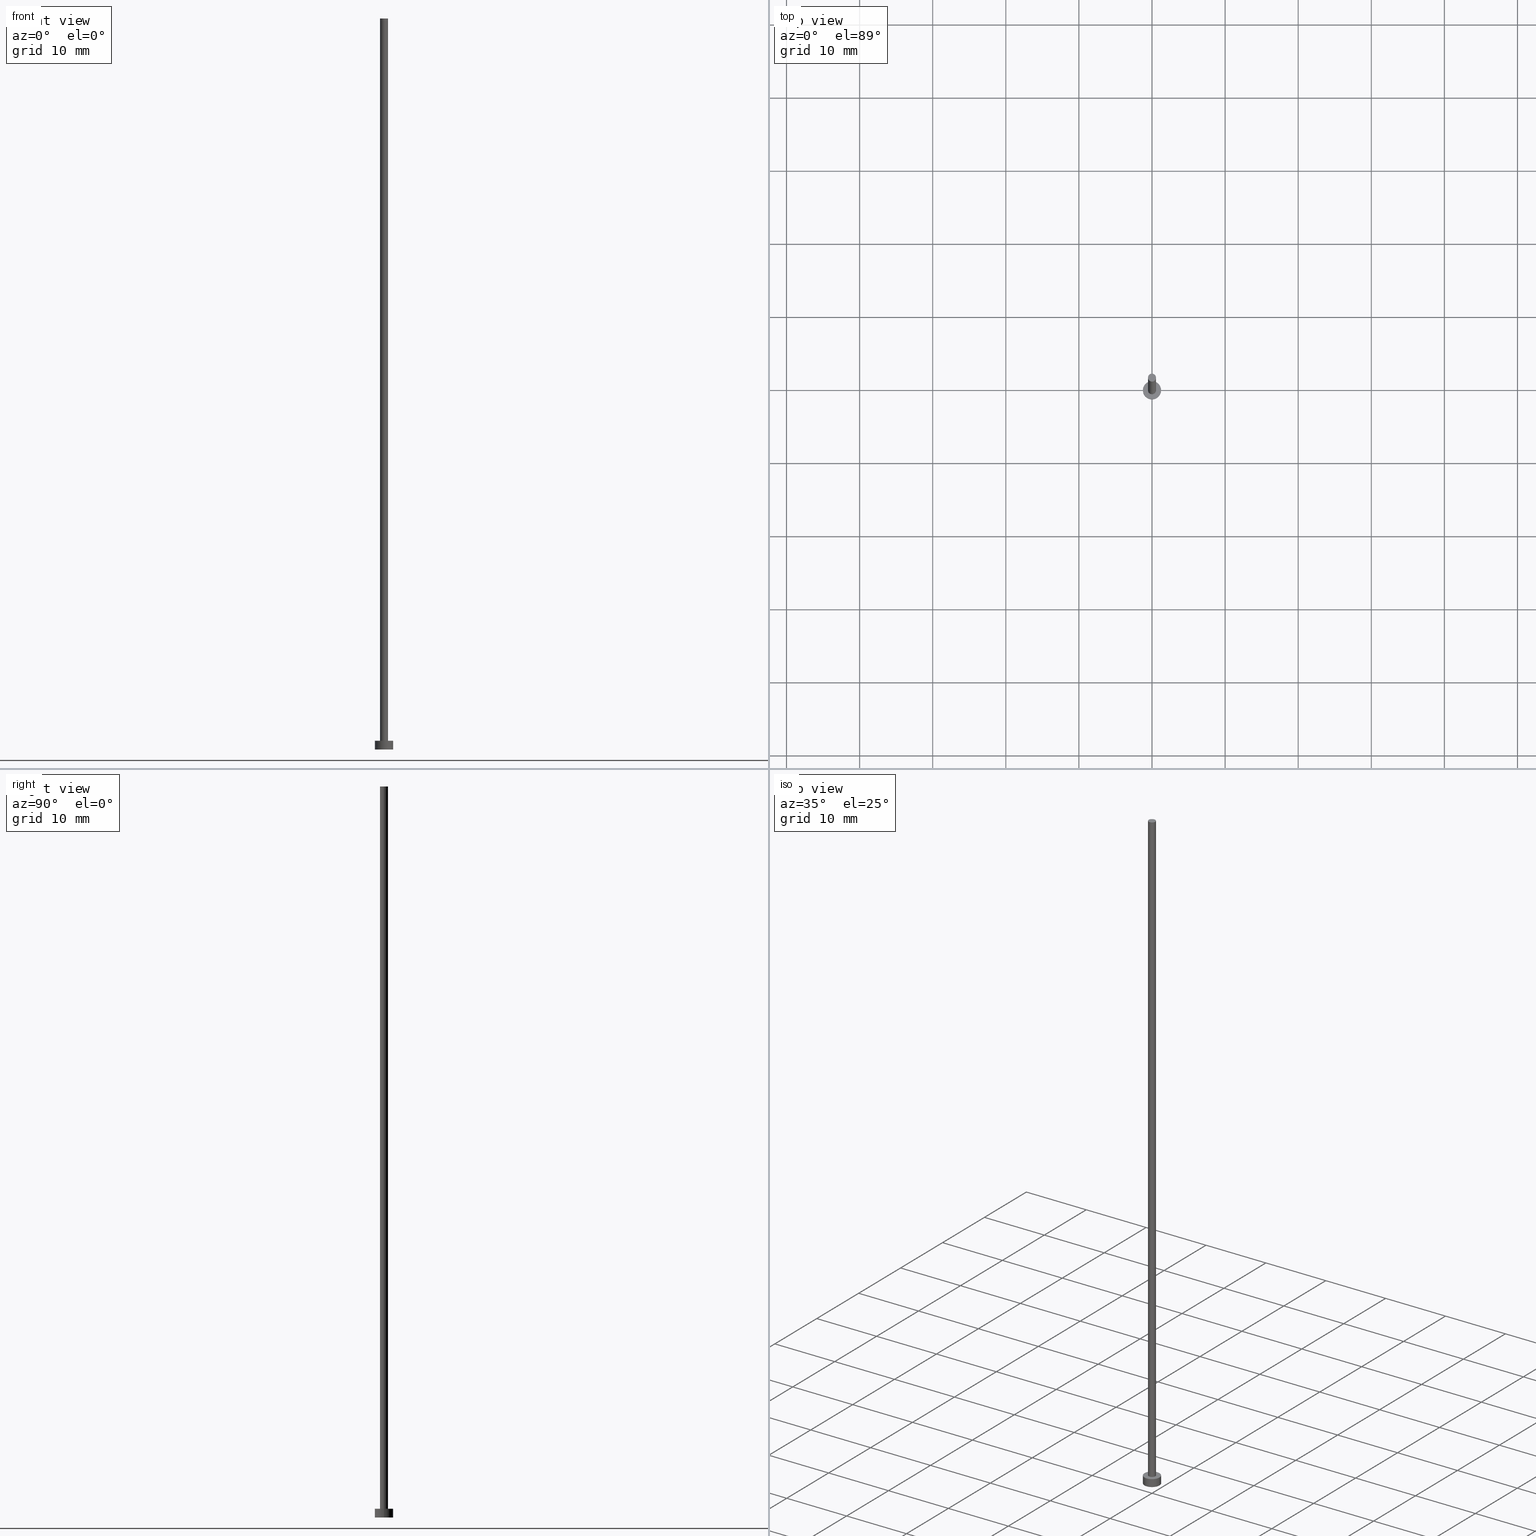
[diagram: canonical four-view strip — front | top / right | iso, engineering-drawing reading convention]
A machine part, canonical four-view strip (front | top / right | iso — engineering-drawing reading convention). The complete STEP part file that produces these views, byte-faithful:
ISO-10303-21;
HEADER;
FILE_DESCRIPTION (( 'STEP AP203' ),
    '1' );
FILE_NAME ('9f99.STEP',
    '2023-02-13T15:27:46',
    ( '' ),
    ( '' ),
    'SwSTEP 2.0',
    'SolidWorks 2019',
    '' );
FILE_SCHEMA (( 'CONFIG_CONTROL_DESIGN' ));
ENDSEC;

DATA;
#1 = LINE ( 'NONE', #39, #212 ) ;
#2 = EDGE_CURVE ( 'NONE', #182, #102, #30, .T. ) ;
#3 = PERSON_AND_ORGANIZATION ( #229, #213 ) ;
#4 = CARTESIAN_POINT ( 'NONE',  ( 0.5500000000000000444, 6.735557395310442516E-17, 100.0000000000000000 ) ) ;
#5 = APPROVAL_ROLE ( '' ) ;
#6 = CYLINDRICAL_SURFACE ( 'NONE', #84, 1.250000000000000000 ) ;
#7 = SECURITY_CLASSIFICATION_LEVEL ( 'unclassified' ) ;
#8 = CC_DESIGN_PERSON_AND_ORGANIZATION_ASSIGNMENT ( #63, #216, ( #114 ) ) ;
#9 = DIRECTION ( 'NONE',  ( 1.000000000000000000, 0.000000000000000000, 0.000000000000000000 ) ) ;
#10 = ORIENTED_EDGE ( 'NONE', *, *, #164, .T. ) ;
#11 = CC_DESIGN_PERSON_AND_ORGANIZATION_ASSIGNMENT ( #40, #112, ( #191 ) ) ;
#12 = AXIS2_PLACEMENT_3D ( 'NONE', #217, #138, #13 ) ;
#13 = DIRECTION ( 'NONE',  ( 1.000000000000000000, 0.000000000000000000, 0.000000000000000000 ) ) ;
#14 = VERTEX_POINT ( 'NONE', #153 ) ;
#15 = VERTEX_POINT ( 'NONE', #206 ) ;
#16 = DIRECTION ( 'NONE',  ( 0.000000000000000000, 0.000000000000000000, 1.000000000000000000 ) ) ;
#17 = CARTESIAN_POINT ( 'NONE',  ( 0.000000000000000000, 0.000000000000000000, 1.199999999999999956 ) ) ;
#18 = AXIS2_PLACEMENT_3D ( 'NONE', #189, #16, #92 ) ;
#19 = MECHANICAL_CONTEXT ( 'NONE', #177, 'mechanical' ) ;
#20 = DIRECTION ( 'NONE',  ( -0.000000000000000000, -0.000000000000000000, -1.000000000000000000 ) ) ;
#21 = LINE ( 'NONE', #253, #233 ) ;
#22 = DIRECTION ( 'NONE',  ( 0.000000000000000000, 0.000000000000000000, 1.000000000000000000 ) ) ;
#23 = DATE_TIME_ROLE ( 'classification_date' ) ;
#24 = CC_DESIGN_SECURITY_CLASSIFICATION ( #114, ( #191 ) ) ;
#25 = DIRECTION ( 'NONE',  ( -0.000000000000000000, -0.000000000000000000, -1.000000000000000000 ) ) ;
#26 =( LENGTH_UNIT ( ) NAMED_UNIT ( * ) SI_UNIT ( .MILLI., .METRE. ) );
#27 = AXIS2_PLACEMENT_3D ( 'NONE', #109, #187, #156 ) ;
#28 = CYLINDRICAL_SURFACE ( 'NONE', #165, 0.5500000000000000444 ) ;
#29 = ORIENTED_EDGE ( 'NONE', *, *, #243, .T. ) ;
#30 = LINE ( 'NONE', #53, #146 ) ;
#31 = EDGE_CURVE ( 'NONE', #124, #107, #130, .T. ) ;
#32 = CYLINDRICAL_SURFACE ( 'NONE', #151, 0.5500000000000000444 ) ;
#33 = LOCAL_TIME ( 16, 27, 46.00000000000000000, #62 ) ;
#34 = MANIFOLD_SOLID_BREP ( 'P�idat vysunut�m3', #201 ) ;
#35 = DATE_TIME_ROLE ( 'creation_date' ) ;
#36 = EDGE_CURVE ( 'NONE', #186, #102, #134, .T. ) ;
#37 = DIRECTION ( 'NONE',  ( 0.000000000000000000, 0.000000000000000000, 1.000000000000000000 ) ) ;
#38 = CIRCLE ( 'NONE', #238, 1.250000000000000000 ) ;
#39 = CARTESIAN_POINT ( 'NONE',  ( 1.250000000000000000, 1.530808498934191571E-16, 1.199999999999999956 ) ) ;
#40 = PERSON_AND_ORGANIZATION ( #229, #213 ) ;
#41 = PERSON_AND_ORGANIZATION ( #229, #213 ) ;
#42 = AXIS2_PLACEMENT_3D ( 'NONE', #196, #25, #214 ) ;
#43 = ORIENTED_EDGE ( 'NONE', *, *, #2, .F. ) ;
#44 = CIRCLE ( 'NONE', #68, 0.5500000000000000444 ) ;
#45 = EDGE_LOOP ( 'NONE', ( #148, #223 ) ) ;
#46 = COORDINATED_UNIVERSAL_TIME_OFFSET ( 1, 0, .AHEAD. ) ;
#47 = DIRECTION ( 'NONE',  ( -0.000000000000000000, -0.000000000000000000, -1.000000000000000000 ) ) ;
#48 = ORIENTED_EDGE ( 'NONE', *, *, #192, .F. ) ;
#49 = EDGE_LOOP ( 'NONE', ( #181, #210, #67, #204 ) ) ;
#50 = DESIGN_CONTEXT ( 'detailed design', #142, 'design' ) ;
#51 = COORDINATED_UNIVERSAL_TIME_OFFSET ( 1, 0, .AHEAD. ) ;
#52 = DIRECTION ( 'NONE',  ( -1.000000000000000000, 0.000000000000000000, 0.000000000000000000 ) ) ;
#53 = CARTESIAN_POINT ( 'NONE',  ( 0.5500000000000000444, 6.735557395310442516E-17, 100.0000000000000000 ) ) ;
#54 = ORIENTED_EDGE ( 'NONE', *, *, #126, .F. ) ;
#55 = CARTESIAN_POINT ( 'NONE',  ( -1.250000000000000000, 0.000000000000000000, 1.199999999999999956 ) ) ;
#56 = FACE_OUTER_BOUND ( 'NONE', #227, .T. ) ;
#57 = AXIS2_PLACEMENT_3D ( 'NONE', #215, #22, #115 ) ;
#58 = FACE_OUTER_BOUND ( 'NONE', #49, .T. ) ;
#59 = APPLICATION_PROTOCOL_DEFINITION ( 'international standard', 'config_control_design', 1994, #142 ) ;
#60 = CC_DESIGN_PERSON_AND_ORGANIZATION_ASSIGNMENT ( #198, #81, ( #191 ) ) ;
#61 = ORIENTED_EDGE ( 'NONE', *, *, #2, .T. ) ;
#62 = COORDINATED_UNIVERSAL_TIME_OFFSET ( 1, 0, .AHEAD. ) ;
#63 = PERSON_AND_ORGANIZATION ( #229, #213 ) ;
#64 = APPROVAL ( #180, 'NEUR�EN�' ) ;
#65 = CARTESIAN_POINT ( 'NONE',  ( 0.000000000000000000, 0.000000000000000000, 100.0000000000000000 ) ) ;
#66 = ORIENTED_EDGE ( 'NONE', *, *, #243, .F. ) ;
#67 = ORIENTED_EDGE ( 'NONE', *, *, #126, .T. ) ;
#68 = AXIS2_PLACEMENT_3D ( 'NONE', #143, #202, #121 ) ;
#69 = CARTESIAN_POINT ( 'NONE',  ( 0.000000000000000000, 0.000000000000000000, 0.000000000000000000 ) ) ;
#70 = PERSON_AND_ORGANIZATION_ROLE ( 'creator' ) ;
#71 = ADVANCED_FACE ( 'NONE', ( #190, #211 ), #168, .T. ) ;
#72 = DIRECTION ( 'NONE',  ( 1.000000000000000000, 0.000000000000000000, 0.000000000000000000 ) ) ;
#73 = CC_DESIGN_APPROVAL ( #199, ( #139 ) ) ;
#74 = PLANE ( 'NONE',  #57 ) ;
#75 = DIRECTION ( 'NONE',  ( 1.000000000000000000, 0.000000000000000000, 0.000000000000000000 ) ) ;
#76 = LOCAL_TIME ( 16, 27, 46.00000000000000000, #51 ) ;
#77 = APPROVAL_STATUS ( 'not_yet_approved' ) ;
#78 = CARTESIAN_POINT ( 'NONE',  ( -0.5500000000000000444, 0.000000000000000000, 1.199999999999999956 ) ) ;
#79 = EDGE_CURVE ( 'NONE', #107, #15, #235, .T. ) ;
#80 = CARTESIAN_POINT ( 'NONE',  ( 0.000000000000000000, 0.000000000000000000, 1.199999999999999956 ) ) ;
#81 = PERSON_AND_ORGANIZATION_ROLE ( 'creator' ) ;
#82 = APPLICATION_PROTOCOL_DEFINITION ( 'international standard', 'config_control_design', 1994, #177 ) ;
#83 = ORIENTED_EDGE ( 'NONE', *, *, #79, .T. ) ;
#84 = AXIS2_PLACEMENT_3D ( 'NONE', #80, #244, #161 ) ;
#85 = DIRECTION ( 'NONE',  ( 1.000000000000000000, 0.000000000000000000, 0.000000000000000000 ) ) ;
#86 = ORIENTED_EDGE ( 'NONE', *, *, #135, .F. ) ;
#87 = ADVANCED_BREP_SHAPE_REPRESENTATION ( '9f99', ( #34, #172 ), #99 ) ;
#88 = CARTESIAN_POINT ( 'NONE',  ( 0.000000000000000000, 0.000000000000000000, 100.0000000000000000 ) ) ;
#89 = DIRECTION ( 'NONE',  ( -0.000000000000000000, -0.000000000000000000, -1.000000000000000000 ) ) ;
#90 = AXIS2_PLACEMENT_3D ( 'NONE', #17, #37, #72 ) ;
#91 = FACE_OUTER_BOUND ( 'NONE', #162, .T. ) ;
#92 = DIRECTION ( 'NONE',  ( 1.000000000000000000, 0.000000000000000000, 0.000000000000000000 ) ) ;
#93 = CIRCLE ( 'NONE', #179, 1.250000000000000000 ) ;
#94 = CARTESIAN_POINT ( 'NONE',  ( -1.250000000000000000, 0.000000000000000000, 1.199999999999999956 ) ) ;
#95 = CARTESIAN_POINT ( 'NONE',  ( 0.000000000000000000, 0.000000000000000000, 1.199999999999999956 ) ) ;
#96 = LOCAL_TIME ( 16, 27, 46.00000000000000000, #46 ) ;
#97 = DATE_AND_TIME ( #237, #96 ) ;
#98 = FACE_OUTER_BOUND ( 'NONE', #184, .T. ) ;
#99 =( GEOMETRIC_REPRESENTATION_CONTEXT ( 3 ) GLOBAL_UNCERTAINTY_ASSIGNED_CONTEXT ( ( #105 ) ) GLOBAL_UNIT_ASSIGNED_CONTEXT ( ( #26, #221, #106 ) ) REPRESENTATION_CONTEXT ( 'NONE', 'WORKASPACE' ) );
#100 = DIRECTION ( 'NONE',  ( 0.000000000000000000, 0.000000000000000000, 1.000000000000000000 ) ) ;
#101 = VECTOR ( 'NONE', #20, 1000.000000000000000 ) ;
#102 = VERTEX_POINT ( 'NONE', #208 ) ;
#103 = DIRECTION ( 'NONE',  ( -1.000000000000000000, 0.000000000000000000, 0.000000000000000000 ) ) ;
#104 = ORIENTED_EDGE ( 'NONE', *, *, #79, .F. ) ;
#105 = UNCERTAINTY_MEASURE_WITH_UNIT (LENGTH_MEASURE( 1.000000000000000082E-05 ), #26, 'distance_accuracy_value', 'NONE');
#106 =( NAMED_UNIT ( * ) SI_UNIT ( $, .STERADIAN. ) SOLID_ANGLE_UNIT ( ) );
#107 = VERTEX_POINT ( 'NONE', #252 ) ;
#108 = APPROVAL ( #224, 'NEUR�EN�' ) ;
#109 = CARTESIAN_POINT ( 'NONE',  ( 0.000000000000000000, 0.000000000000000000, 1.199999999999999956 ) ) ;
#110 = CARTESIAN_POINT ( 'NONE',  ( 0.000000000000000000, 0.000000000000000000, 0.000000000000000000 ) ) ;
#111 = DATE_AND_TIME ( #209, #160 ) ;
#112 = PERSON_AND_ORGANIZATION_ROLE ( 'design_supplier' ) ;
#113 = EDGE_CURVE ( 'NONE', #247, #186, #21, .T. ) ;
#114 = SECURITY_CLASSIFICATION ( '', '', #7 ) ;
#115 = DIRECTION ( 'NONE',  ( 1.000000000000000000, 0.000000000000000000, -0.000000000000000000 ) ) ;
#116 = ADVANCED_FACE ( 'NONE', ( #56 ), #32, .T. ) ;
#117 = CALENDAR_DATE ( 2023, 13, 2 ) ;
#118 = APPROVAL_PERSON_ORGANIZATION ( #3, #199, #5 ) ;
#119 = APPROVAL_ROLE ( '' ) ;
#120 = APPROVAL_DATE_TIME ( #176, #108 ) ;
#121 = DIRECTION ( 'NONE',  ( 1.000000000000000000, 0.000000000000000000, 0.000000000000000000 ) ) ;
#122 = ORIENTED_EDGE ( 'NONE', *, *, #31, .T. ) ;
#123 = AXIS2_PLACEMENT_3D ( 'NONE', #125, #149, #147 ) ;
#124 = VERTEX_POINT ( 'NONE', #55 ) ;
#125 = CARTESIAN_POINT ( 'NONE',  ( 0.000000000000000000, 0.000000000000000000, 100.0000000000000000 ) ) ;
#126 = EDGE_CURVE ( 'NONE', #15, #107, #93, .T. ) ;
#127 = COORDINATED_UNIVERSAL_TIME_OFFSET ( 1, 0, .AHEAD. ) ;
#128 = APPROVAL_ROLE ( '' ) ;
#129 = ADVANCED_FACE ( 'NONE', ( #91 ), #169, .F. ) ;
#130 = LINE ( 'NONE', #94, #101 ) ;
#131 = CC_DESIGN_APPROVAL ( #64, ( #114 ) ) ;
#132 = DIRECTION ( 'NONE',  ( 0.000000000000000000, 0.000000000000000000, 1.000000000000000000 ) ) ;
#133 = PRODUCT ( '9f99', '9f99', '', ( #19 ) ) ;
#134 = CIRCLE ( 'NONE', #90, 0.5500000000000000444 ) ;
#135 = EDGE_CURVE ( 'NONE', #14, #15, #1, .T. ) ;
#136 = CYLINDRICAL_SURFACE ( 'NONE', #42, 1.250000000000000000 ) ;
#137 = PRODUCT_DEFINITION_SHAPE ( 'NONE', 'NONE',  #139 ) ;
#138 = DIRECTION ( 'NONE',  ( 0.000000000000000000, 0.000000000000000000, 1.000000000000000000 ) ) ;
#139 = PRODUCT_DEFINITION ( 'NEZN�M�', '', #191, #50 ) ;
#140 = ORIENTED_EDGE ( 'NONE', *, *, #207, .F. ) ;
#141 = SHAPE_DEFINITION_REPRESENTATION ( #137, #87 ) ;
#142 = APPLICATION_CONTEXT ( 'configuration controlled 3d designs of mechanical parts and assemblies' ) ;
#143 = CARTESIAN_POINT ( 'NONE',  ( 0.000000000000000000, 0.000000000000000000, 1.199999999999999956 ) ) ;
#144 = ORIENTED_EDGE ( 'NONE', *, *, #207, .T. ) ;
#145 = AXIS2_PLACEMENT_3D ( 'NONE', #88, #220, #85 ) ;
#146 = VECTOR ( 'NONE', #226, 1000.000000000000000 ) ;
#147 = DIRECTION ( 'NONE',  ( 1.000000000000000000, 0.000000000000000000, 0.000000000000000000 ) ) ;
#148 = ORIENTED_EDGE ( 'NONE', *, *, #192, .T. ) ;
#149 = DIRECTION ( 'NONE',  ( 0.000000000000000000, 0.000000000000000000, 1.000000000000000000 ) ) ;
#150 = ORIENTED_EDGE ( 'NONE', *, *, #36, .T. ) ;
#151 = AXIS2_PLACEMENT_3D ( 'NONE', #228, #89, #52 ) ;
#152 = CC_DESIGN_PERSON_AND_ORGANIZATION_ASSIGNMENT ( #173, #174, ( #133 ) ) ;
#153 = CARTESIAN_POINT ( 'NONE',  ( 1.250000000000000000, 1.530808498934191571E-16, 1.199999999999999956 ) ) ;
#154 = CIRCLE ( 'NONE', #145, 0.5500000000000000444 ) ;
#155 = CC_DESIGN_DATE_AND_TIME_ASSIGNMENT ( #111, #35, ( #139 ) ) ;
#156 = DIRECTION ( 'NONE',  ( 1.000000000000000000, 0.000000000000000000, -0.000000000000000000 ) ) ;
#157 = CALENDAR_DATE ( 2023, 13, 2 ) ;
#158 = ADVANCED_FACE ( 'NONE', ( #234 ), #74, .T. ) ;
#159 = COORDINATED_UNIVERSAL_TIME_OFFSET ( 1, 0, .AHEAD. ) ;
#160 = LOCAL_TIME ( 16, 27, 46.00000000000000000, #127 ) ;
#161 = DIRECTION ( 'NONE',  ( -1.000000000000000000, 0.000000000000000000, 0.000000000000000000 ) ) ;
#162 = EDGE_LOOP ( 'NONE', ( #104, #54 ) ) ;
#163 = ORIENTED_EDGE ( 'NONE', *, *, #113, .T. ) ;
#164 = EDGE_CURVE ( 'NONE', #14, #124, #38, .T. ) ;
#165 = AXIS2_PLACEMENT_3D ( 'NONE', #65, #47, #103 ) ;
#166 = CARTESIAN_POINT ( 'NONE',  ( -0.5500000000000000444, 0.000000000000000000, 100.0000000000000000 ) ) ;
#167 = DIRECTION ( 'NONE',  ( 1.000000000000000000, 0.000000000000000000, 0.000000000000000000 ) ) ;
#168 = PLANE ( 'NONE',  #27 ) ;
#169 = PLANE ( 'NONE',  #195 ) ;
#170 = EDGE_LOOP ( 'NONE', ( #29, #10 ) ) ;
#171 = ADVANCED_FACE ( 'NONE', ( #58 ), #136, .T. ) ;
#172 = AXIS2_PLACEMENT_3D ( 'NONE', #200, #100, #9 ) ;
#173 = PERSON_AND_ORGANIZATION ( #229, #213 ) ;
#174 = PERSON_AND_ORGANIZATION_ROLE ( 'design_owner' ) ;
#175 = DIRECTION ( 'NONE',  ( 0.000000000000000000, 0.000000000000000000, 1.000000000000000000 ) ) ;
#176 = DATE_AND_TIME ( #117, #76 ) ;
#177 = APPLICATION_CONTEXT ( 'configuration controlled 3d designs of mechanical parts and assemblies' ) ;
#178 = APPROVAL_DATE_TIME ( #97, #64 ) ;
#179 = AXIS2_PLACEMENT_3D ( 'NONE', #110, #132, #167 ) ;
#180 = APPROVAL_STATUS ( 'not_yet_approved' ) ;
#181 = ORIENTED_EDGE ( 'NONE', *, *, #164, .F. ) ;
#182 = VERTEX_POINT ( 'NONE', #4 ) ;
#183 = APPROVAL_PERSON_ORGANIZATION ( #185, #108, #128 ) ;
#184 = EDGE_LOOP ( 'NONE', ( #86, #66, #122, #83 ) ) ;
#185 = PERSON_AND_ORGANIZATION ( #229, #213 ) ;
#186 = VERTEX_POINT ( 'NONE', #78 ) ;
#187 = DIRECTION ( 'NONE',  ( 0.000000000000000000, 0.000000000000000000, 1.000000000000000000 ) ) ;
#188 = ADVANCED_FACE ( 'NONE', ( #98 ), #6, .T. ) ;
#189 = CARTESIAN_POINT ( 'NONE',  ( 0.000000000000000000, 0.000000000000000000, 0.000000000000000000 ) ) ;
#190 = FACE_BOUND ( 'NONE', #218, .T. ) ;
#191 = PRODUCT_DEFINITION_FORMATION_WITH_SPECIFIED_SOURCE ( 'LIBOVOLN�', '', #133, .NOT_KNOWN. ) ;
#192 = EDGE_CURVE ( 'NONE', #247, #182, #231, .T. ) ;
#193 = DIRECTION ( 'NONE',  ( -0.000000000000000000, -0.000000000000000000, -1.000000000000000000 ) ) ;
#194 = DATE_AND_TIME ( #157, #232 ) ;
#195 = AXIS2_PLACEMENT_3D ( 'NONE', #69, #248, #251 ) ;
#196 = CARTESIAN_POINT ( 'NONE',  ( 0.000000000000000000, 0.000000000000000000, 1.199999999999999956 ) ) ;
#197 = CC_DESIGN_PERSON_AND_ORGANIZATION_ASSIGNMENT ( #250, #70, ( #139 ) ) ;
#198 = PERSON_AND_ORGANIZATION ( #229, #213 ) ;
#199 = APPROVAL ( #77, 'NEUR�EN�' ) ;
#200 = CARTESIAN_POINT ( 'NONE',  ( 0.000000000000000000, 0.000000000000000000, 0.000000000000000000 ) ) ;
#201 = CLOSED_SHELL ( 'NONE', ( #205, #171, #188, #71, #129, #116, #158 ) ) ;
#202 = DIRECTION ( 'NONE',  ( 0.000000000000000000, 0.000000000000000000, 1.000000000000000000 ) ) ;
#203 = ORIENTED_EDGE ( 'NONE', *, *, #246, .F. ) ;
#204 = ORIENTED_EDGE ( 'NONE', *, *, #31, .F. ) ;
#205 = ADVANCED_FACE ( 'NONE', ( #240 ), #28, .T. ) ;
#206 = CARTESIAN_POINT ( 'NONE',  ( 1.250000000000000000, 1.530808498934191571E-16, 0.000000000000000000 ) ) ;
#207 = EDGE_CURVE ( 'NONE', #102, #186, #44, .T. ) ;
#208 = CARTESIAN_POINT ( 'NONE',  ( 0.5500000000000000444, 6.735557395310442516E-17, 1.199999999999999956 ) ) ;
#209 = CALENDAR_DATE ( 2023, 13, 2 ) ;
#210 = ORIENTED_EDGE ( 'NONE', *, *, #135, .T. ) ;
#211 = FACE_OUTER_BOUND ( 'NONE', #170, .T. ) ;
#212 = VECTOR ( 'NONE', #193, 1000.000000000000000 ) ;
#213 = ORGANIZATION ( 'NEUR�EN�', 'NEUR�EN�', '' ) ;
#214 = DIRECTION ( 'NONE',  ( -1.000000000000000000, 0.000000000000000000, 0.000000000000000000 ) ) ;
#215 = CARTESIAN_POINT ( 'NONE',  ( 0.000000000000000000, 0.000000000000000000, 100.0000000000000000 ) ) ;
#216 = PERSON_AND_ORGANIZATION_ROLE ( 'classification_officer' ) ;
#217 = CARTESIAN_POINT ( 'NONE',  ( 0.000000000000000000, 0.000000000000000000, 1.199999999999999956 ) ) ;
#218 = EDGE_LOOP ( 'NONE', ( #249, #140 ) ) ;
#219 = DATE_AND_TIME ( #242, #33 ) ;
#220 = DIRECTION ( 'NONE',  ( 0.000000000000000000, 0.000000000000000000, 1.000000000000000000 ) ) ;
#221 =( NAMED_UNIT ( * ) PLANE_ANGLE_UNIT ( ) SI_UNIT ( $, .RADIAN. ) );
#222 = PRODUCT_RELATED_PRODUCT_CATEGORY ( 'detail', '', ( #133 ) ) ;
#223 = ORIENTED_EDGE ( 'NONE', *, *, #246, .T. ) ;
#224 = APPROVAL_STATUS ( 'not_yet_approved' ) ;
#225 = CC_DESIGN_APPROVAL ( #108, ( #191 ) ) ;
#226 = DIRECTION ( 'NONE',  ( -0.000000000000000000, -0.000000000000000000, -1.000000000000000000 ) ) ;
#227 = EDGE_LOOP ( 'NONE', ( #43, #48, #163, #150 ) ) ;
#228 = CARTESIAN_POINT ( 'NONE',  ( 0.000000000000000000, 0.000000000000000000, 100.0000000000000000 ) ) ;
#229 = PERSON ( 'NEUR�EN�', 'NEUR�EN�', 'NEUR�EN�', ('NEUR�EN�'), ('NEUR�EN�'), ('NEUR�EN�') ) ;
#230 = DIRECTION ( 'NONE',  ( -0.000000000000000000, -0.000000000000000000, -1.000000000000000000 ) ) ;
#231 = CIRCLE ( 'NONE', #123, 0.5500000000000000444 ) ;
#232 = LOCAL_TIME ( 16, 27, 46.00000000000000000, #159 ) ;
#233 = VECTOR ( 'NONE', #230, 1000.000000000000000 ) ;
#234 = FACE_OUTER_BOUND ( 'NONE', #45, .T. ) ;
#235 = CIRCLE ( 'NONE', #18, 1.250000000000000000 ) ;
#236 = CC_DESIGN_DATE_AND_TIME_ASSIGNMENT ( #219, #23, ( #114 ) ) ;
#237 = CALENDAR_DATE ( 2023, 13, 2 ) ;
#238 = AXIS2_PLACEMENT_3D ( 'NONE', #95, #175, #75 ) ;
#239 = CIRCLE ( 'NONE', #12, 1.250000000000000000 ) ;
#240 = FACE_OUTER_BOUND ( 'NONE', #241, .T. ) ;
#241 = EDGE_LOOP ( 'NONE', ( #203, #61, #144, #245 ) ) ;
#242 = CALENDAR_DATE ( 2023, 13, 2 ) ;
#243 = EDGE_CURVE ( 'NONE', #124, #14, #239, .T. ) ;
#244 = DIRECTION ( 'NONE',  ( -0.000000000000000000, -0.000000000000000000, -1.000000000000000000 ) ) ;
#245 = ORIENTED_EDGE ( 'NONE', *, *, #113, .F. ) ;
#246 = EDGE_CURVE ( 'NONE', #182, #247, #154, .T. ) ;
#247 = VERTEX_POINT ( 'NONE', #166 ) ;
#248 = DIRECTION ( 'NONE',  ( 0.000000000000000000, 0.000000000000000000, 1.000000000000000000 ) ) ;
#249 = ORIENTED_EDGE ( 'NONE', *, *, #36, .F. ) ;
#250 = PERSON_AND_ORGANIZATION ( #229, #213 ) ;
#251 = DIRECTION ( 'NONE',  ( 1.000000000000000000, 0.000000000000000000, -0.000000000000000000 ) ) ;
#252 = CARTESIAN_POINT ( 'NONE',  ( -1.250000000000000000, 0.000000000000000000, 0.000000000000000000 ) ) ;
#253 = CARTESIAN_POINT ( 'NONE',  ( -0.5500000000000000444, 0.000000000000000000, 100.0000000000000000 ) ) ;
#254 = APPROVAL_PERSON_ORGANIZATION ( #41, #64, #119 ) ;
#255 = APPROVAL_DATE_TIME ( #194, #199 ) ;
ENDSEC;
END-ISO-10303-21;
